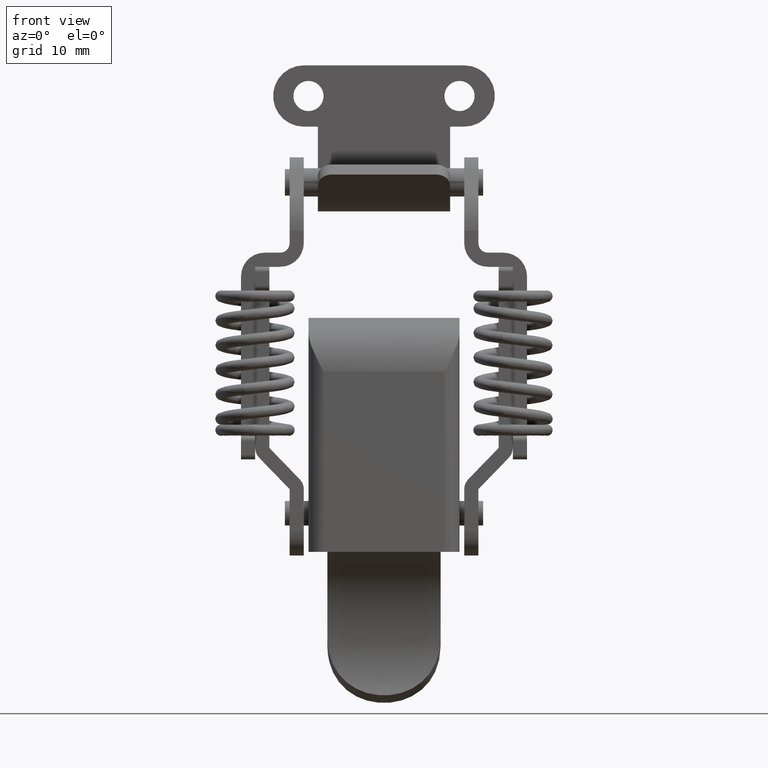
[diagram: clean part render]
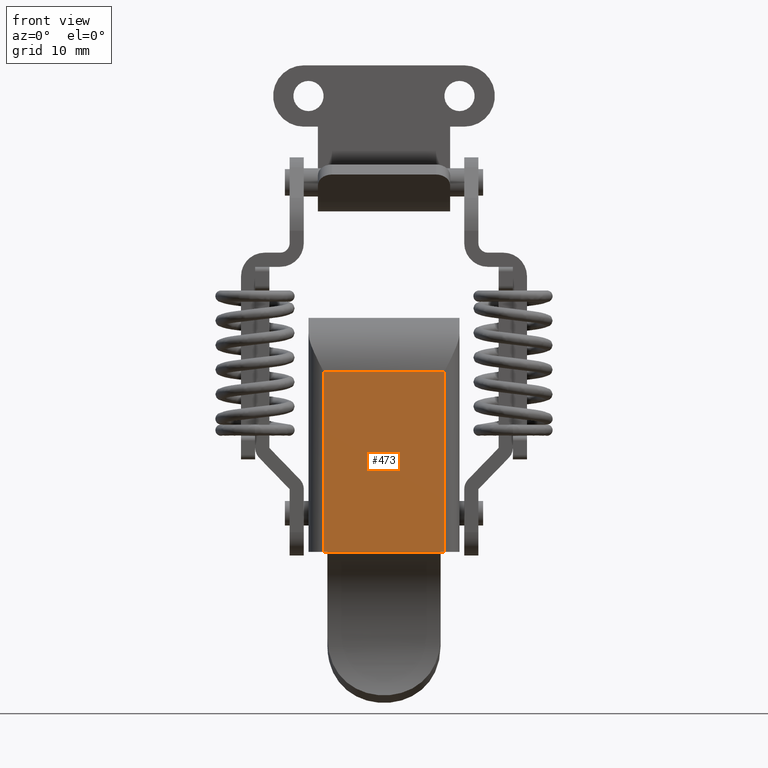
[diagram: same view with one face highlighted and labeled with its STEP entity id]
A machine part, front view. The second image highlights one B-rep face of the part: STEP entity #473.
In plain terms, the highlighted planar face has unit normal (0, -1, 0).
Its self-contained STEP definition (entity closure, byte-faithful):
#473=ADVANCED_FACE('',(#2314),#2313,.T.);
#2313=PLANE('',#3856);
#2314=FACE_OUTER_BOUND('',#3857,.T.);
#3853=CARTESIAN_POINT('',(-7.68000000000E+00,-7.69108641419E+00,-3.79000000000E+00));
#3854=DIRECTION('',(0.00000000000E+00,-1.00000000000E+00,0.00000000000E+00));
#3855=DIRECTION('',(0.00000000000E+00,0.00000000000E+00,-1.00000000000E+00));
#3856=AXIS2_PLACEMENT_3D('',#3853,#3854,#3855);
#3857=EDGE_LOOP('',(#7227,#7228,#7229,#7230,#7231,#7232));
#7227=ORIENTED_EDGE('',*,*,#8010,.F.);
#7228=ORIENTED_EDGE('',*,*,#7992,.T.);
#7229=ORIENTED_EDGE('',*,*,#7913,.T.);
#7230=ORIENTED_EDGE('',*,*,#8023,.T.);
#7231=ORIENTED_EDGE('',*,*,#7956,.T.);
#7232=ORIENTED_EDGE('',*,*,#7903,.F.);
#7903=EDGE_CURVE('',#10597,#10604,#10605,.T.);
#7913=EDGE_CURVE('',#10673,#10674,#10675,.T.);
#7956=EDGE_CURVE('',#10968,#10604,#10969,.T.);
#7992=EDGE_CURVE('',#11206,#10673,#11207,.T.);
#8010=EDGE_CURVE('',#11206,#10597,#11323,.T.);
#8023=EDGE_CURVE('',#10674,#10968,#11407,.T.);
#10597=VERTEX_POINT('',#13811);
#10604=VERTEX_POINT('',#13816);
#10605=LINE('',#13817,#13818);
#10673=VERTEX_POINT('',#13897);
#10674=VERTEX_POINT('',#13898);
#10675=LINE('',#13899,#13900);
#10968=VERTEX_POINT('',#14099);
#10969=LINE('',#14100,#14101);
#11206=VERTEX_POINT('',#14240);
#11207=LINE('',#14241,#14242);
#11323=LINE('',#14308,#14309);
#11407=LINE('',#14357,#14358);
#13811=CARTESIAN_POINT('',(6.00000000000E+00,-7.69108641419E+00,-2.48000000000E+01));
#13816=CARTESIAN_POINT('',(-6.00000000000E+00,-7.69108641419E+00,-2.48000000000E+01));
#13817=CARTESIAN_POINT('',(6.00000000000E+00,-7.69108641419E+00,-2.48000000000E+01));
#13818=VECTOR('',#13819,1.20000000000E+01);
#13819=DIRECTION('',(-1.00000000000E+00,0.00000000000E+00,0.00000000000E+00));
#13897=CARTESIAN_POINT('',(6.40000000000E+00,-7.69108641419E+00,-5.70000000000E+00));
#13898=CARTESIAN_POINT('',(-6.40000000000E+00,-7.69108641419E+00,-5.70000000000E+00));
#13899=CARTESIAN_POINT('',(6.40000000000E+00,-7.69108641419E+00,-5.70000000000E+00));
#13900=VECTOR('',#13901,1.28000000000E+01);
#13901=DIRECTION('',(-1.00000000000E+00,0.00000000000E+00,0.00000000000E+00));
#14099=CARTESIAN_POINT('',(-6.40000000000E+00,-7.69108641419E+00,-2.48000000000E+01));
#14100=CARTESIAN_POINT('',(-6.40000000000E+00,-7.69108641419E+00,-2.48000000000E+01));
#14101=VECTOR('',#14102,4.00000000000E-01);
#14102=DIRECTION('',(1.00000000000E+00,0.00000000000E+00,0.00000000000E+00));
#14240=CARTESIAN_POINT('',(6.40000000000E+00,-7.69108641419E+00,-2.48000000000E+01));
#14241=CARTESIAN_POINT('',(6.40000000000E+00,-7.69108641419E+00,-2.48000000000E+01));
#14242=VECTOR('',#14243,1.91000000000E+01);
#14243=DIRECTION('',(0.00000000000E+00,0.00000000000E+00,1.00000000000E+00));
#14308=CARTESIAN_POINT('',(6.40000000000E+00,-7.69108641419E+00,-2.48000000000E+01));
#14309=VECTOR('',#14310,4.00000000000E-01);
#14310=DIRECTION('',(-1.00000000000E+00,0.00000000000E+00,0.00000000000E+00));
#14357=CARTESIAN_POINT('',(-6.40000000000E+00,-7.69108641419E+00,-5.70000000000E+00));
#14358=VECTOR('',#14359,1.91000000000E+01);
#14359=DIRECTION('',(0.00000000000E+00,0.00000000000E+00,-1.00000000000E+00));